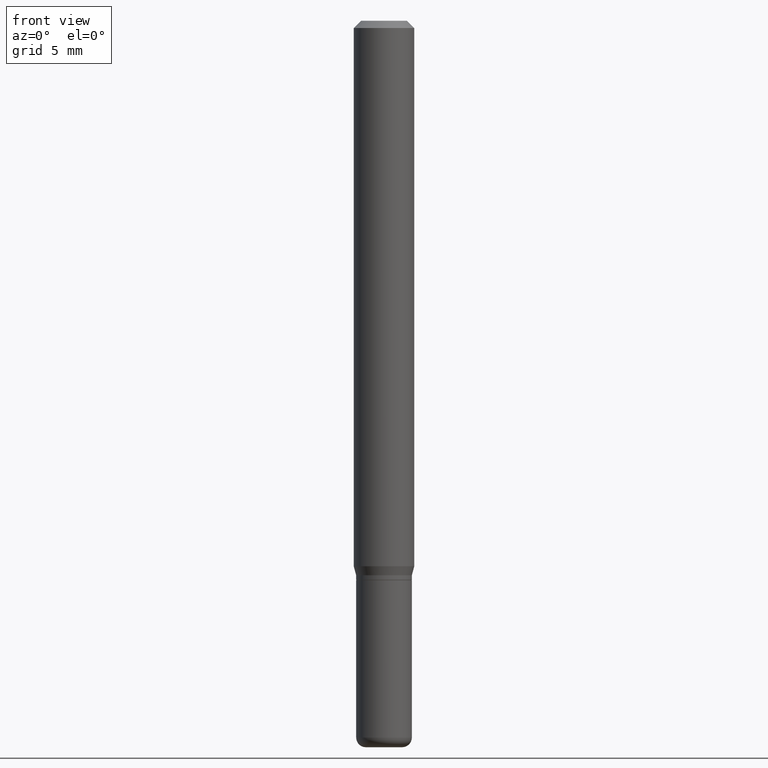
[diagram: clean part render]
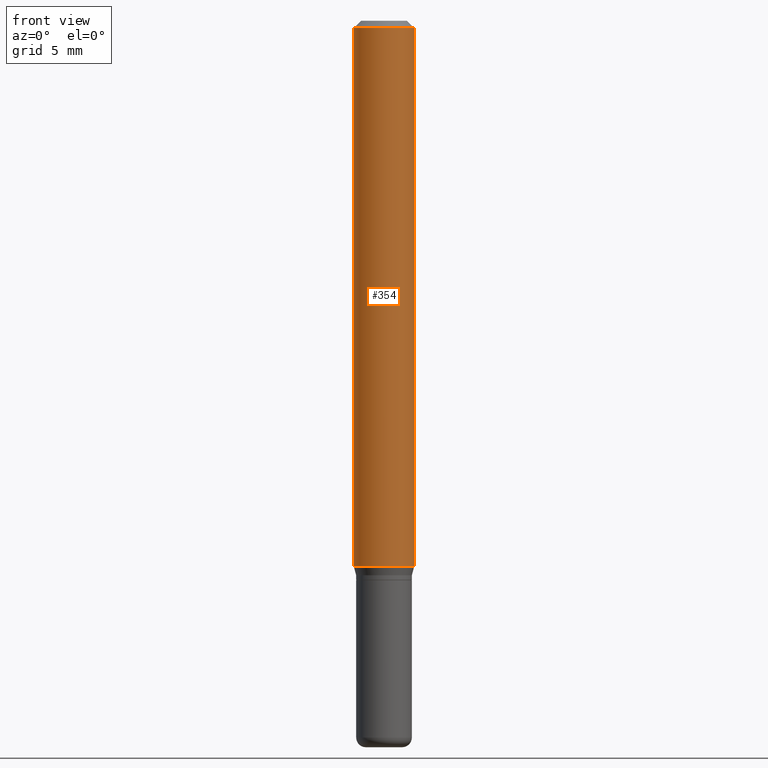
[diagram: same view with one face highlighted and labeled with its STEP entity id]
A machine part, front view. The second image highlights one B-rep face of the part: STEP entity #354.
In plain terms, the highlighted cylindrical surface (edge-blend (fillet) strip) has radius 1.5875 mm, axis along (-0, 0, 1).
Its self-contained STEP definition (entity closure, byte-faithful):
#13 = AXIS2_PLACEMENT_3D ( 'NONE', #60, #205, #439 ) ;
#25 = VERTEX_POINT ( 'NONE', #378 ) ;
#45 = DIRECTION ( 'NONE',  ( 1.000000000000000000, -6.982962677686266711E-15, 4.876176775795935793E-29 ) ) ;
#60 = CARTESIAN_POINT ( 'NONE',  ( 2.754428713916943180E-29, -3.932594204224195830E-15, -1.126339745962155803 ) ) ;
#65 = CIRCLE ( 'NONE', #13, 0.06250000000000000000 ) ;
#69 = ORIENTED_EDGE ( 'NONE', *, *, #456, .T. ) ;
#109 = FACE_OUTER_BOUND ( 'NONE', #242, .T. ) ;
#123 = CARTESIAN_POINT ( 'NONE',  ( -0.06250000000000000000, 4.440892098500626162E-16, -3.074334431409316114E-30 ) ) ;
#130 = CARTESIAN_POINT ( 'NONE',  ( 0.06250000000000000000, -4.888073874380378612E-16, -0.01499999999999970281 ) ) ;
#140 = ORIENTED_EDGE ( 'NONE', *, *, #386, .T. ) ;
#147 = CARTESIAN_POINT ( 'NONE',  ( 3.668203209277632395E-31, -5.237222008264614861E-17, -0.01499999999999970281 ) ) ;
#153 = DIRECTION ( 'NONE',  ( -2.445468806185136877E-29, 3.491481338843145188E-15, 1.000000000000000000 ) ) ;
#169 = EDGE_CURVE ( 'NONE', #220, #258, #499, .T. ) ;
#171 = AXIS2_PLACEMENT_3D ( 'NONE', #508, #447, #45 ) ;
#174 = VERTEX_POINT ( 'NONE', #385 ) ;
#179 = ORIENTED_EDGE ( 'NONE', *, *, #321, .F. ) ;
#187 = CARTESIAN_POINT ( 'NONE',  ( 0.06250000000000000000, -4.364351673553916694E-16, 3.047610484872459871E-30 ) ) ;
#194 = CARTESIAN_POINT ( 'NONE',  ( -0.06250000000000000000, -1.548394002303358444E-15, -0.01499999999999970281 ) ) ;
#205 = DIRECTION ( 'NONE',  ( -2.445468806185136597E-29, 3.491481338843145583E-15, 1.000000000000000000 ) ) ;
#220 = VERTEX_POINT ( 'NONE', #194 ) ;
#242 = EDGE_LOOP ( 'NONE', ( #179, #69, #140, #303 ) ) ;
#253 = VECTOR ( 'NONE', #320, 39.37007874015748143 ) ;
#258 = VERTEX_POINT ( 'NONE', #130 ) ;
#274 = AXIS2_PLACEMENT_3D ( 'NONE', #147, #300, #460 ) ;
#285 = VECTOR ( 'NONE', #153, 39.37007874015748143 ) ;
#300 = DIRECTION ( 'NONE',  ( -2.445468806185136597E-29, 3.491481338843145583E-15, 1.000000000000000000 ) ) ;
#303 = ORIENTED_EDGE ( 'NONE', *, *, #169, .F. ) ;
#315 = LINE ( 'NONE', #123, #253 ) ;
#320 = DIRECTION ( 'NONE',  ( -2.445468806185136877E-29, 3.491481338843145188E-15, 1.000000000000000000 ) ) ;
#321 = EDGE_CURVE ( 'NONE', #25, #220, #315, .T. ) ;
#354 = ADVANCED_FACE ( 'NONE', ( #109 ), #379, .T. ) ;
#378 = CARTESIAN_POINT ( 'NONE',  ( -0.06250000000000000000, -3.488504994374132819E-15, -1.126339745962155803 ) ) ;
#379 = CYLINDRICAL_SURFACE ( 'NONE', #171, 0.06250000000000000000 ) ;
#385 = CARTESIAN_POINT ( 'NONE',  ( 0.06250000000000000000, -4.369029371579587499E-15, -1.126339745962155803 ) ) ;
#386 = EDGE_CURVE ( 'NONE', #174, #258, #388, .T. ) ;
#388 = LINE ( 'NONE', #187, #285 ) ;
#439 = DIRECTION ( 'NONE',  ( 1.000000000000000000, -6.982962677686262766E-15, 0.000000000000000000 ) ) ;
#447 = DIRECTION ( 'NONE',  ( -2.445468806185136597E-29, 3.491481338843145583E-15, 1.000000000000000000 ) ) ;
#456 = EDGE_CURVE ( 'NONE', #25, #174, #65, .T. ) ;
#460 = DIRECTION ( 'NONE',  ( 1.000000000000000000, -6.982962677686266711E-15, 0.000000000000000000 ) ) ;
#499 = CIRCLE ( 'NONE', #274, 0.06250000000000000000 ) ;
#508 = CARTESIAN_POINT ( 'NONE',  ( 0.000000000000000000, 0.000000000000000000, 0.000000000000000000 ) ) ;